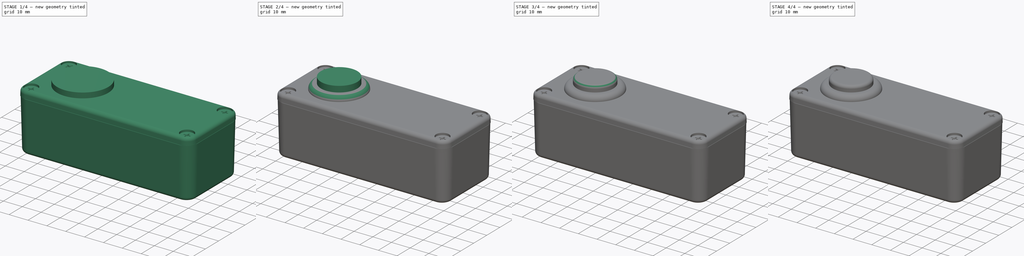
[diagram: build sequence overview — one tinted view per stage of 4, left to right]
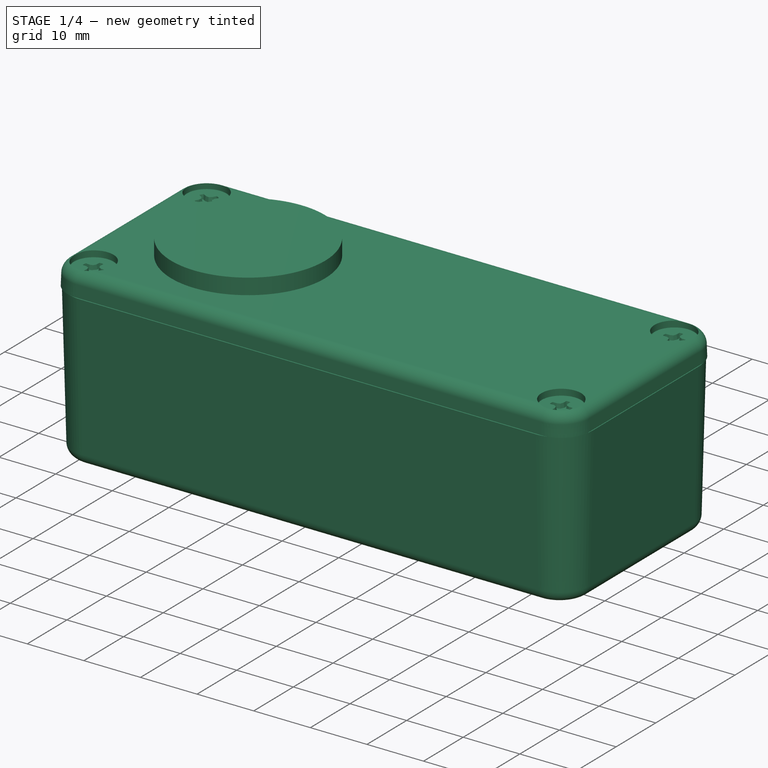
[diagram: stage 1 of 4 — iso view after this stage's code; geometry added in this stage tinted green]
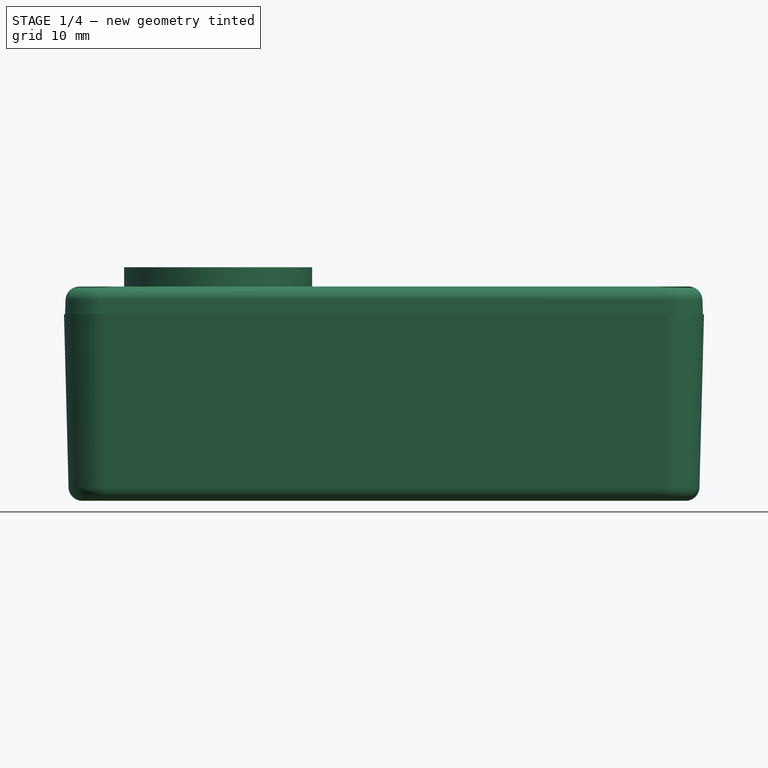
[diagram: stage 1 of 4 — front view after this stage's code; geometry added in this stage tinted green]
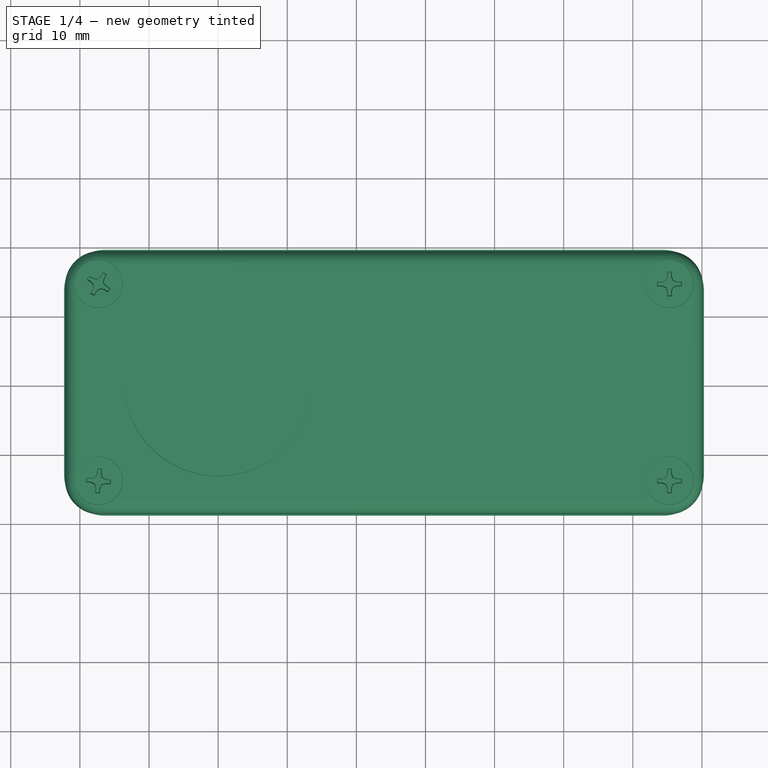
[diagram: stage 1 of 4 — top view after this stage's code; geometry added in this stage tinted green]
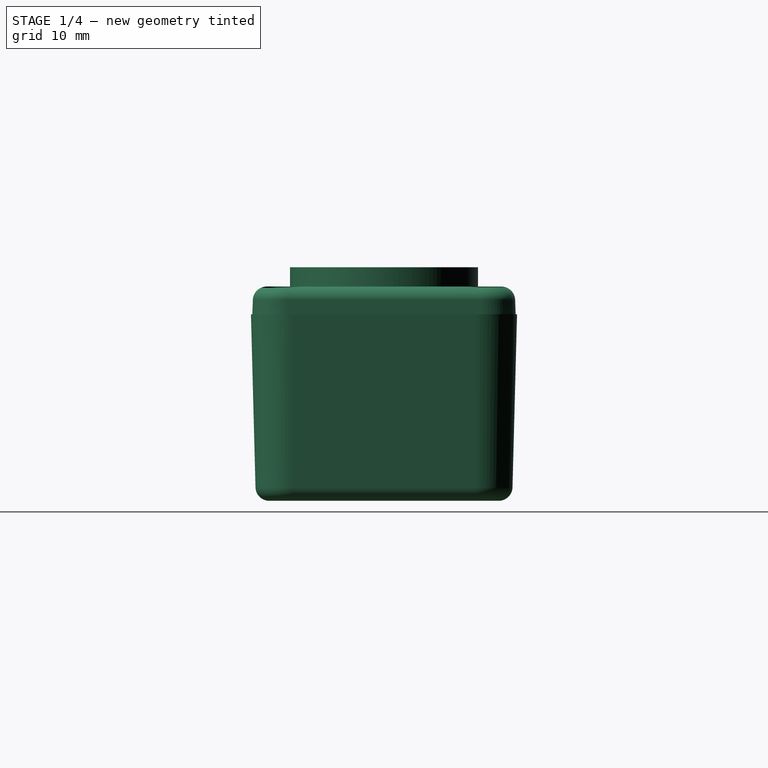
[diagram: stage 1 of 4 — right view after this stage's code; geometry added in this stage tinted green]
FCSTD DOCUMENT  (FreeCAD 0.19R16945 (Git))
Label: Sanwa OBSF-24
License: All rights reserved
LicenseURL: http://en.wikipedia.org/wiki/All_rights_reserved
objects: Sketcher::SketchObject×6, Part::Feature×6, PartDesign::Pad×4, PartDesign::Fillet×2, PartDesign::Pocket×2, PartDesign::Plane×1, PartDesign::Body×1, Part::MultiFuse×1
note: 29 computed .brp shape members not serialized (recipe doc carries the construction recipe); baked Part::Feature solids carry a one-line shape summary decoded from their .brp

FEATURE [Sketcher::SketchObject] Sketch
  MapMode = 5
  Support = -> [XY_Plane]
  sketch-geometry (1):
    g0: Circle CenterX=0 CenterY=0 CenterZ=0 NormalX=0 NormalY=0 NormalZ=1 AngleXU=0 Radius=13.6
  constraints (2):
    c: Coincident(g0,g-1)
    c: Diameter(g0) = 27.2
FEATURE [PartDesign::Pad] Pad
  Length = 2.8
  Length2 = 100
  Profile = -> Sketch
  Type = 0
FEATURE [PartDesign::Plane] DatumPlane
  AttachmentOffset = pos=(0,0,-32) rot=(0,0,1;0rad)
  Length = 32.64
  MapMode = 5
  Placement = pos=(0,0,-32) rot=(0,0,1;0rad)
  ResizeMode = 0
  Support = -> [XY_Plane]
  Width = 32.64
FEATURE [PartDesign::Body] Body
  Group = -> [Sketch,Pad,Fillet,Sketch001,Pad001,Fillet001,Sketch002,Pad002,Sketch003,Pocket,Sketch004,Pocket001,Sketch005,Pad003,DatumPlane]
  Origin = -> Origin
  Tip = -> Pad003
FEATURE [Part::Feature] Part__Feature  label="1590A_BOX"
  shape: bbox 92.6 x 207.7 x 38.5 mm, 248 faces (baked)
FEATURE [Part::Feature] Part__Feature001  label="1590A_SCREW_#4"
  shape: bbox 6.858 x 11.84 x 6.858 mm, 25 faces (baked)
FEATURE [Part::Feature] Part__Feature002  label="1590A_SCREW_#1"
  shape: bbox 6.858 x 11.84 x 6.858 mm, 25 faces (baked)
FEATURE [Part::Feature] Part__Feature003  label="1590A_SCREW_#3"
  shape: bbox 6.858 x 11.84 x 6.858 mm, 25 faces (baked)
FEATURE [Part::Feature] Part__Feature004  label="1590A_SCREW_#2"
  shape: bbox 6.858 x 11.84 x 6.858 mm, 25 faces (baked)
FEATURE [Part::Feature] Part__Feature005  label="1590A_LID"
  shape: bbox 92.97 x 6 x 38.77 mm, 104 faces (baked)
FEATURE [Part::MultiFuse] Fusion
  Placement = pos=(24,9e-16,-4) rot=(1,0,0;1.5708rad)
  Shapes = -> [Part__Feature005,Part__Feature004,Part__Feature003,Part__Feature002,Part__Feature001,Part__Feature]
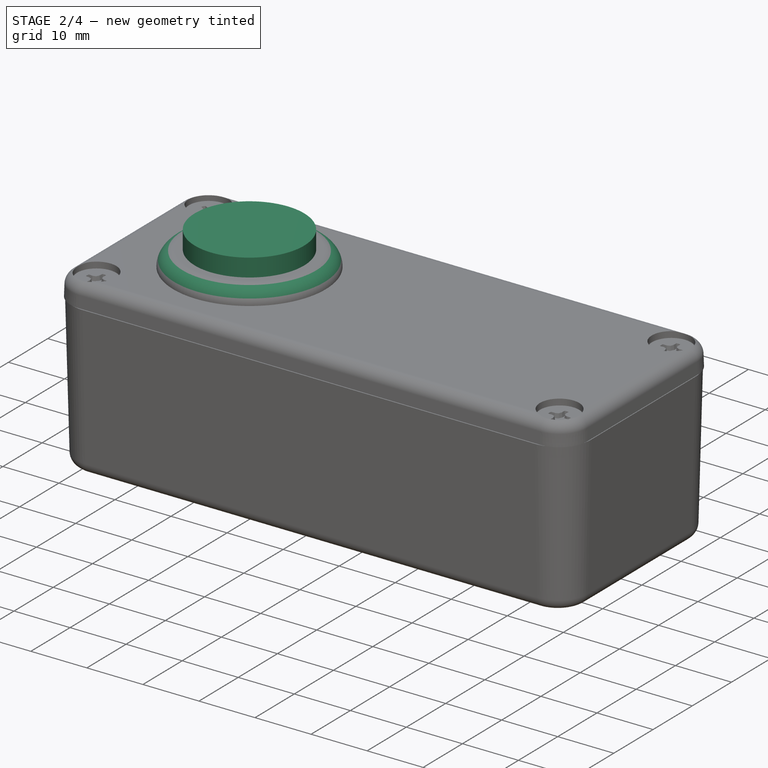
[diagram: stage 2 of 4 — iso view after this stage's code; geometry added in this stage tinted green]
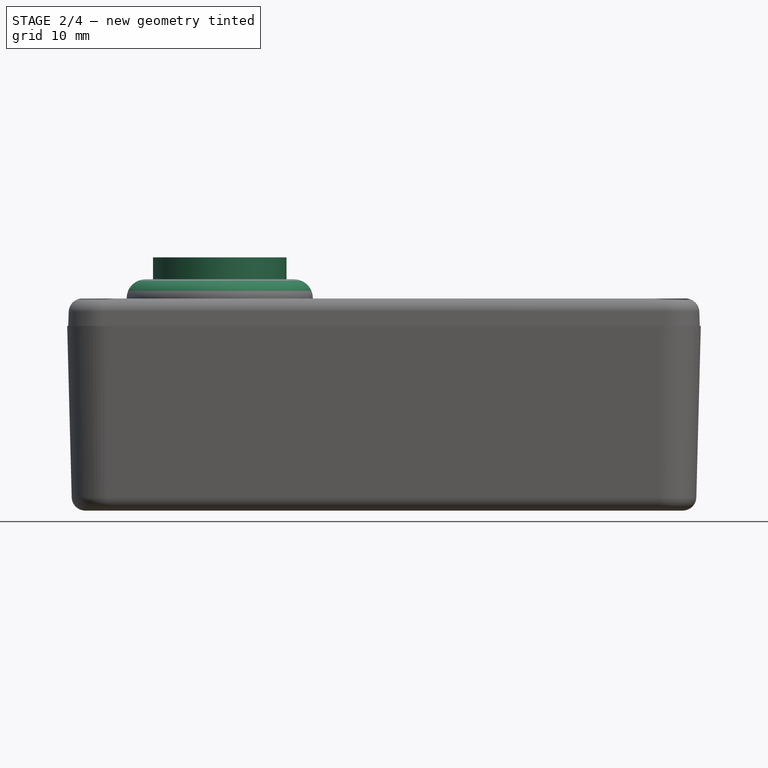
[diagram: stage 2 of 4 — front view after this stage's code; geometry added in this stage tinted green]
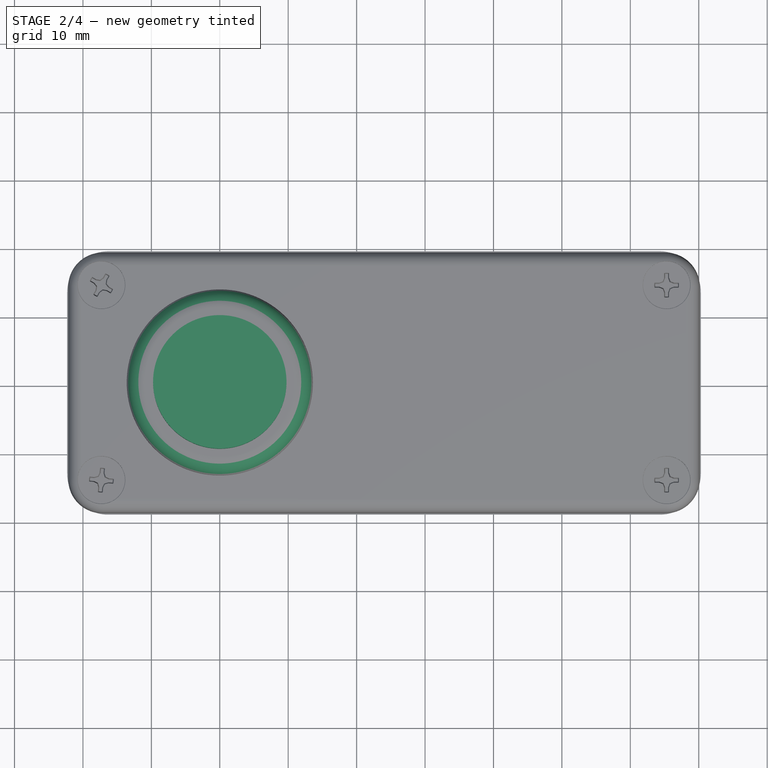
[diagram: stage 2 of 4 — top view after this stage's code; geometry added in this stage tinted green]
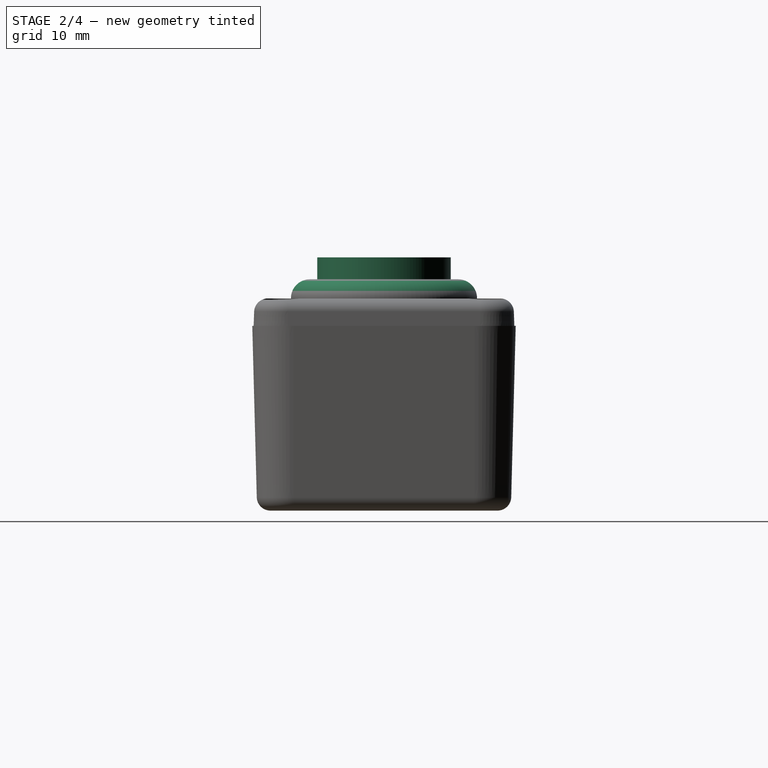
[diagram: stage 2 of 4 — right view after this stage's code; geometry added in this stage tinted green]
FEATURE [PartDesign::Fillet] Fillet
  Base = -> Pad [Edge3]
  BaseFeature = -> Pad
  Radius = 2.75
FEATURE [Sketcher::SketchObject] Sketch001
  MapMode = 5
  Placement = pos=(0,0,2.8) rot=(0,0,1;0rad)
  Support = -> [Fillet]
  sketch-geometry (1):
    g0: Circle CenterX=0 CenterY=0 CenterZ=0 NormalX=0 NormalY=0 NormalZ=1 AngleXU=0 Radius=9.75
  constraints (2):
    c: Coincident(g0,g-1)
    c: Diameter(g0) = 19.5
FEATURE [PartDesign::Pad] Pad001
  BaseFeature = -> Fillet
  Length = 3.2
  Length2 = 100
  Profile = -> Sketch001
  Type = 0
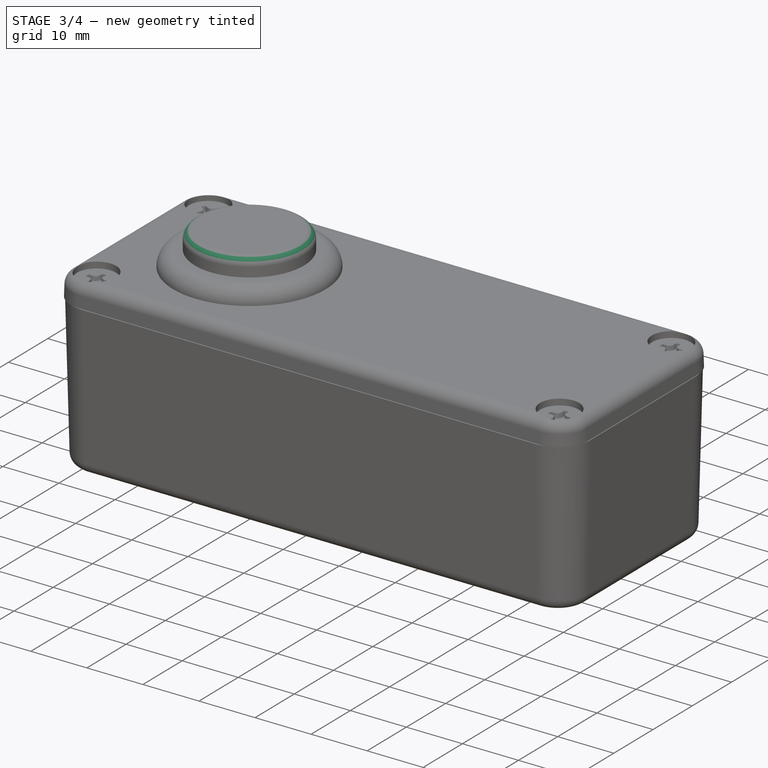
[diagram: stage 3 of 4 — iso view after this stage's code; geometry added in this stage tinted green]
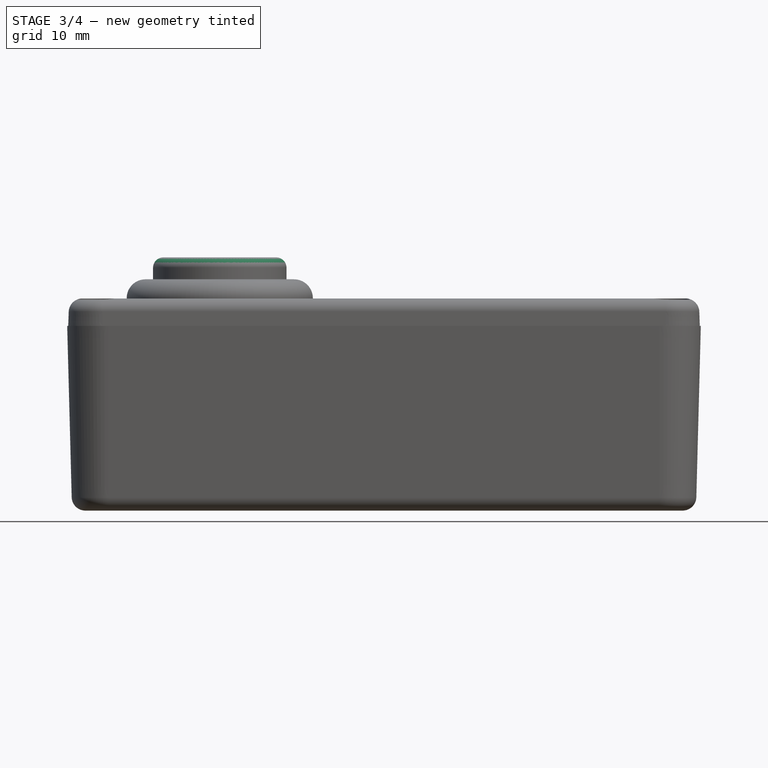
[diagram: stage 3 of 4 — front view after this stage's code; geometry added in this stage tinted green]
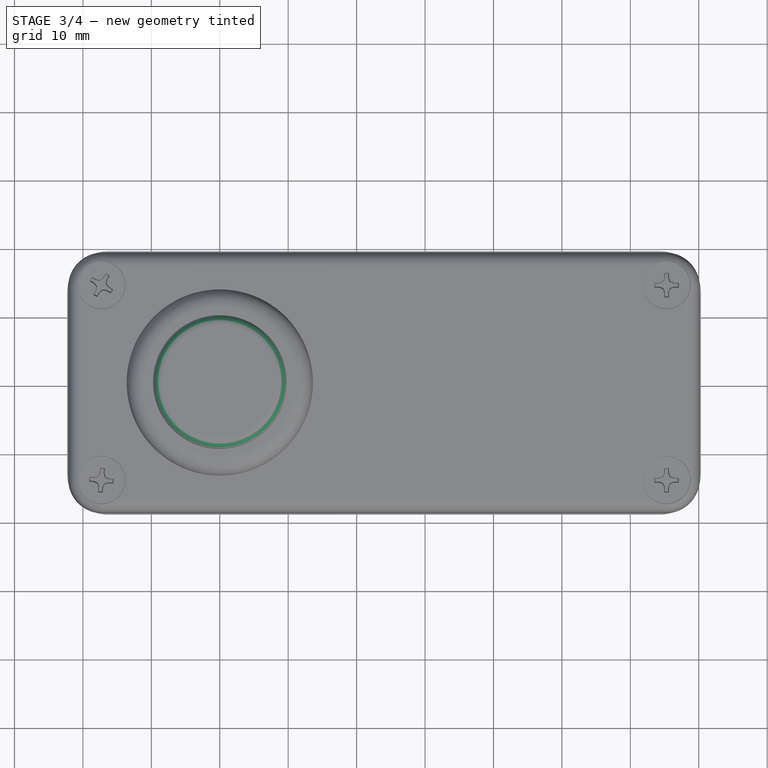
[diagram: stage 3 of 4 — top view after this stage's code; geometry added in this stage tinted green]
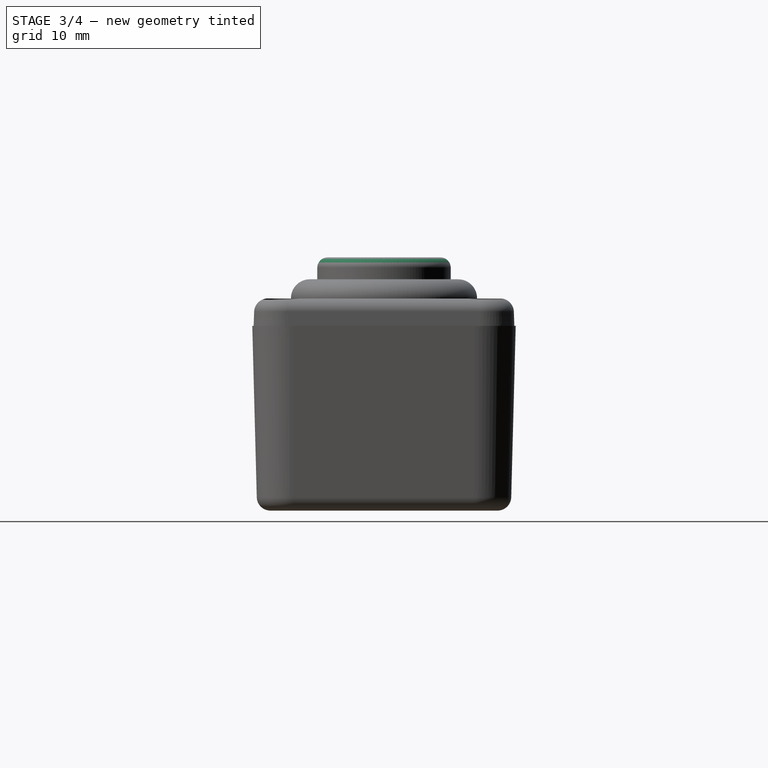
[diagram: stage 3 of 4 — right view after this stage's code; geometry added in this stage tinted green]
FEATURE [PartDesign::Fillet] Fillet001
  Base = -> Pad001 [Edge8]
  BaseFeature = -> Pad001
  Radius = 1.5
FEATURE [Sketcher::SketchObject] Sketch002
  MapMode = 5
  Placement = pos=(0,0,0) rot=(1,0,0;3.14159rad)
  Support = -> [Fillet001]
  sketch-geometry (1):
    g0: Circle CenterX=0 CenterY=0 CenterZ=0 NormalX=0 NormalY=0 NormalZ=1 AngleXU=0 Radius=11.75
  constraints (2):
    c: Coincident(g0,g-1)
    c: Diameter(g0) = 23.5
FEATURE [PartDesign::Pad] Pad002
  BaseFeature = -> Fillet001
  Length = 15
  Length2 = 100
  Profile = -> Sketch002
  Type = 0
FEATURE [Sketcher::SketchObject] Sketch003
  ExternalGeometry = -> [Pad002]
  MapMode = 5
  Placement = pos=(0,0,-15) rot=(1,0,0;3.14159rad)
  Support = -> [Pad002]
  sketch-geometry (10):
    g0: LineSegment [constr] StartX=-10.9794 StartY=-4.18504 StartZ=0 EndX=10.9794 EndY=4.18504 EndZ=0
    g1: LineSegment [constr] StartX=10.9794 StartY=-4.18504 StartZ=0 EndX=-10.9794 EndY=4.18504 EndZ=0
    g2: LineSegment StartX=-10.9794 StartY=-4.18504 StartZ=0 EndX=-7.68331 EndY=-2.92866 EndZ=0
    g3: LineSegment StartX=-10.9794 StartY=4.18504 StartZ=0 EndX=-7.68331 EndY=2.92866 EndZ=0
    g4: LineSegment StartX=10.9794 StartY=-4.18504 StartZ=0 EndX=7.68331 EndY=-2.92865 EndZ=0
    g5: LineSegment StartX=10.9794 StartY=4.18504 StartZ=0 EndX=7.68331 EndY=2.92866 EndZ=0
    g6: LineSegment StartX=-7.68331 StartY=2.92866 StartZ=0 EndX=-7.68331 EndY=-2.92866 EndZ=0
    g7: LineSegment StartX=7.68331 StartY=2.92866 StartZ=0 EndX=7.68331 EndY=-2.92865 EndZ=0
    g8: ArcOfCircle CenterX=0 CenterY=0 CenterZ=0 NormalX=0 NormalY=0 NormalZ=1 AngleXU=0 Radius=11.75 StartAngle=0.36417 EndAngle=2.77742
    g9: ArcOfCircle CenterX=0 CenterY=0 CenterZ=0 NormalX=0 NormalY=0 NormalZ=1 AngleXU=0 Radius=11.75 StartAngle=3.50576 EndAngle=5.91902
  constraints (25):
    c: PointOnObject(g1,g-3)
    c: Symmetric(g0,g1,g-1)
    c: PointOnObject(g2,g0)
    c: PointOnObject(g3,g1)
    c: PointOnObject(g4,g1)
    c: PointOnObject(g5,g0)
    c: Equal(g5,g4)
    c: Equal(g4,g3)
    c: Equal(g3,g2)
    c: Coincident(g6,g3)
    c: Coincident(g6,g2)
    c: Coincident(g7,g5)
    c: Coincident(g7,g4)
    c: Vertical(g7)
    c: Coincident(g8,g-1)
    c: Coincident(g8,g3)
    c: Coincident(g8,g5)
    c: Coincident(g3,g1)
    c: PointOnObject(g8,g1)
    c: Coincident(g0,g2)
    c: Coincident(g5,g0)
    c: Coincident(g1,g4)
    c: Coincident(g9,g8)
    c: Coincident(g9,g2)
    c: Coincident(g9,g4)
FEATURE [PartDesign::Pocket] Pocket
  BaseFeature = -> Pad002
  Length = 2
  Length2 = 100
  Profile = -> Sketch003
  Type = 0
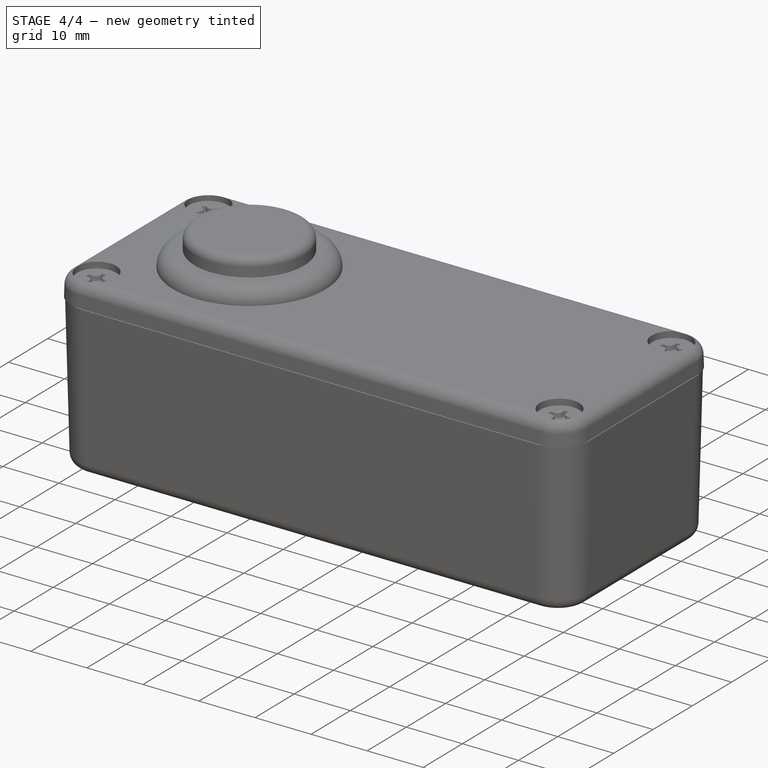
[diagram: stage 4 of 4 — iso view after this stage's code; geometry added in this stage tinted green]
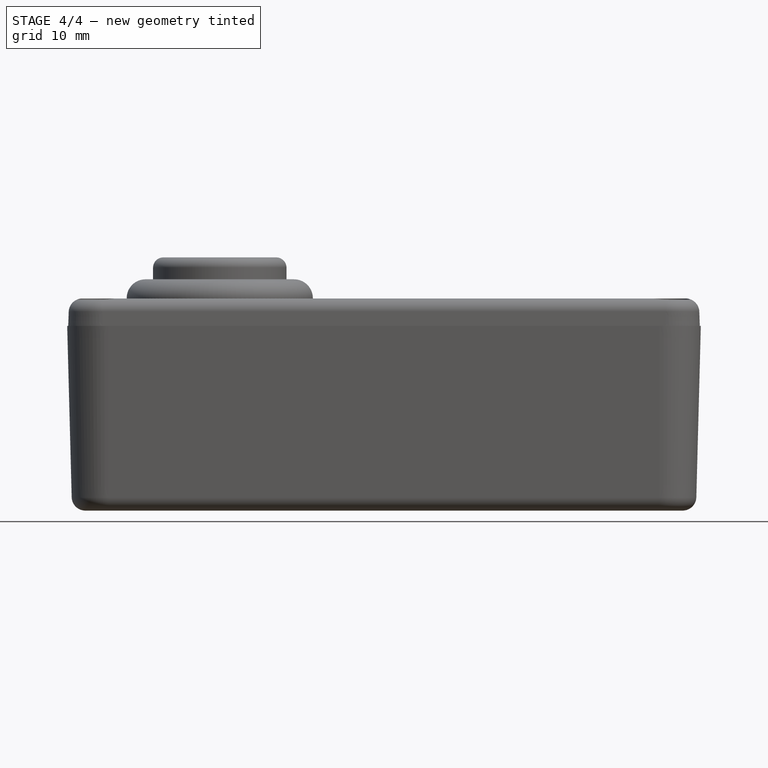
[diagram: stage 4 of 4 — front view after this stage's code; geometry added in this stage tinted green]
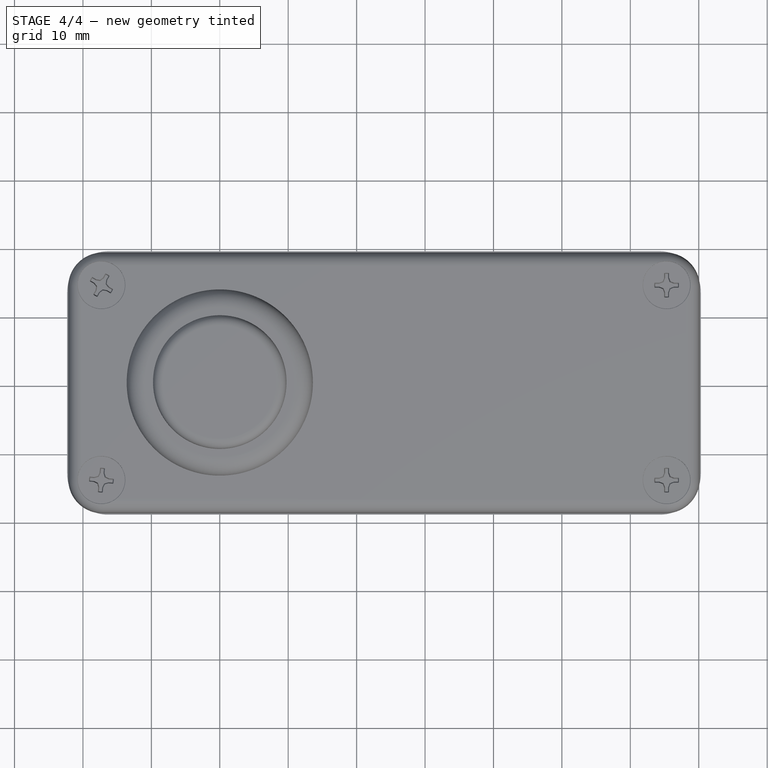
[diagram: stage 4 of 4 — top view after this stage's code; geometry added in this stage tinted green]
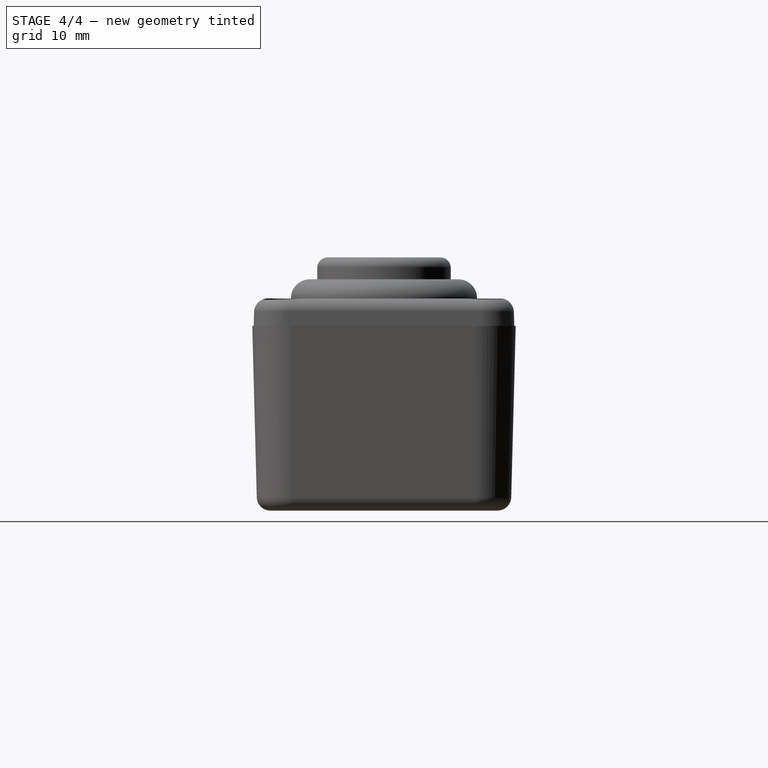
[diagram: stage 4 of 4 — right view after this stage's code; geometry added in this stage tinted green]
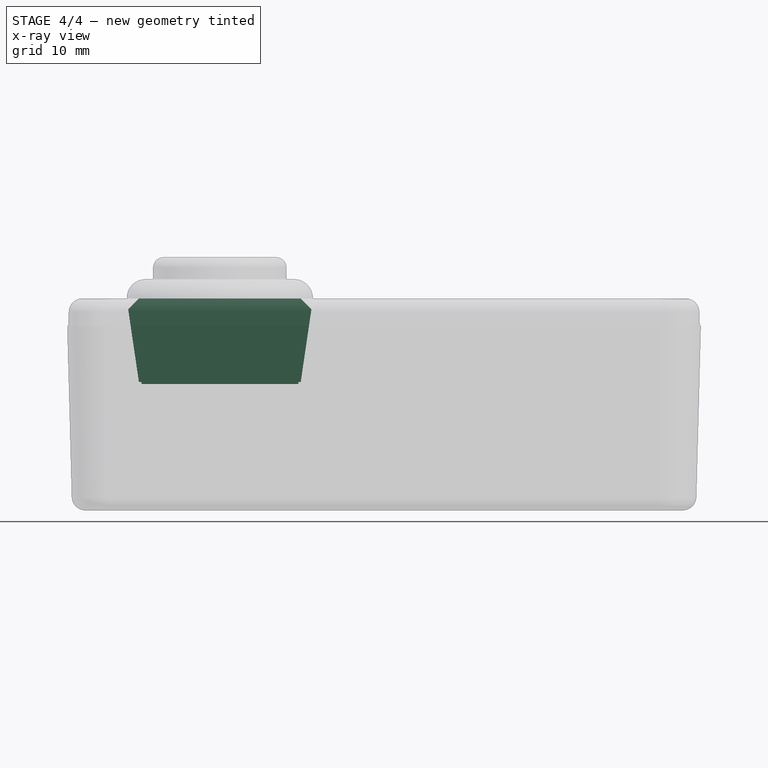
[diagram: stage 4 of 4 — x-ray composite at the front view; earlier geometry ghosted, this stage's added geometry solid]
FEATURE [Sketcher::SketchObject] Sketch004
  MapMode = 5
  Placement = pos=(0,0,0) rot=(0.57735,0.57735,0.57735;2.0944rad)
  Support = -> [YZ_Plane]
  sketch-geometry (4):
    g0: LineSegment StartX=-2.48337 StartY=0 StartZ=0 EndX=2.48337 EndY=0 EndZ=0
    g1: LineSegment StartX=2.48337 StartY=0 StartZ=0 EndX=2.48337 EndY=-12.4968 EndZ=0
    g2: LineSegment StartX=2.48337 StartY=-12.4968 StartZ=0 EndX=-2.48337 EndY=-12.4968 EndZ=0
    g3: LineSegment StartX=-2.48337 StartY=-12.4968 StartZ=0 EndX=-2.48337 EndY=0 EndZ=0
  constraints (9):
    c: Coincident(g0,g1)
    c: Coincident(g1,g2)
    c: Coincident(g2,g3)
    c: Coincident(g3,g0)
    c: Horizontal(g2)
    c: Vertical(g1)
    c: Vertical(g3)
    c: PointOnObject(g0,g-1)
    c: Symmetric(g0,g0,g-2)
FEATURE [PartDesign::Pocket] Pocket001
  BaseFeature = -> Pocket
  Length = 5
  Length2 = 100
  Midplane = true
  Profile = -> Sketch004
  Type = 1
FEATURE [Sketcher::SketchObject] Sketch005
  MapMode = 5
  Placement = pos=(0,0,0) rot=(1,0,0;1.5708rad)
  Support = -> [XZ_Plane]
  sketch-geometry (6):
    g0: LineSegment StartX=-11.8295 StartY=0 StartZ=0 EndX=-13.3982 EndY=-1.58842 EndZ=0
    g1: LineSegment StartX=-13.3982 StartY=-1.58842 StartZ=0 EndX=-11.8295 EndY=-12.2261 EndZ=0
    g2: LineSegment StartX=-11.8295 StartY=-12.2261 StartZ=0 EndX=11.8295 EndY=-12.2261 EndZ=0
    g3: LineSegment StartX=11.8295 StartY=-12.2261 StartZ=0 EndX=13.3982 EndY=-1.58842 EndZ=0
    g4: LineSegment StartX=13.3982 StartY=-1.58842 StartZ=0 EndX=11.8295 EndY=0 EndZ=0
    g5: LineSegment StartX=-11.8295 StartY=0 StartZ=0 EndX=11.8295 EndY=0 EndZ=0
  constraints (11):
    c: PointOnObject(g0,g-1)
    c: Coincident(g1,g0)
    c: Coincident(g2,g1)
    c: Coincident(g3,g2)
    c: Coincident(g4,g3)
    c: Coincident(g5,g0)
    c: Coincident(g5,g4)
    c: Symmetric(g4,g0,g-2)
    c: Symmetric(g2,g1,g-2)
    c: Vertical(g2,g4)
    c: Symmetric(g0,g3,g-2)
FEATURE [PartDesign::Pad] Pad003
  BaseFeature = -> Pocket001
  Length = 4
  Length2 = 100
  Midplane = true
  Profile = -> Sketch005
  Type = 0
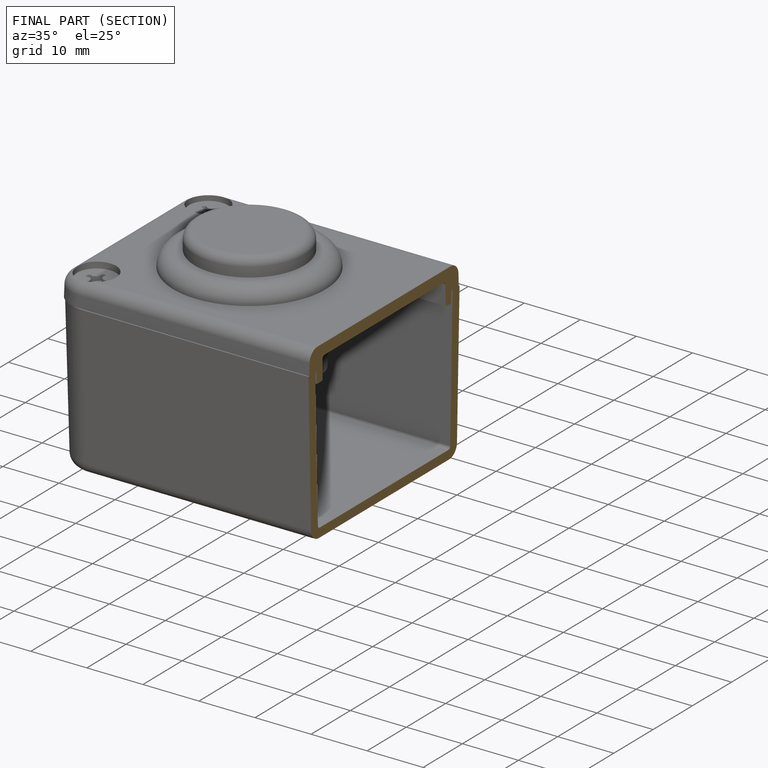
[diagram: finished part — half-section view (interior)]
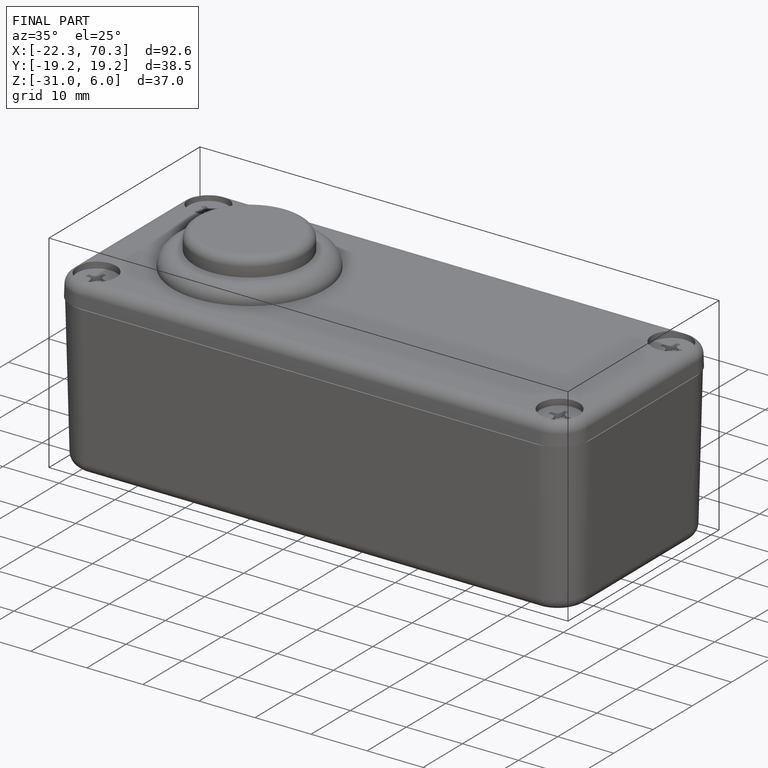
[diagram: finished part — iso view with bounding-box wireframe]
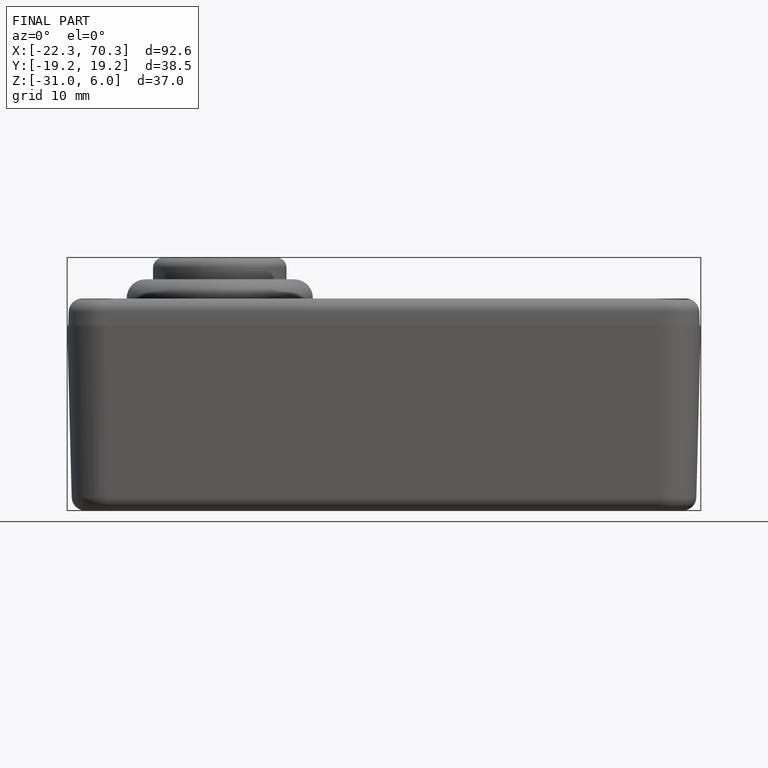
[diagram: finished part — front view with bounding-box wireframe]
